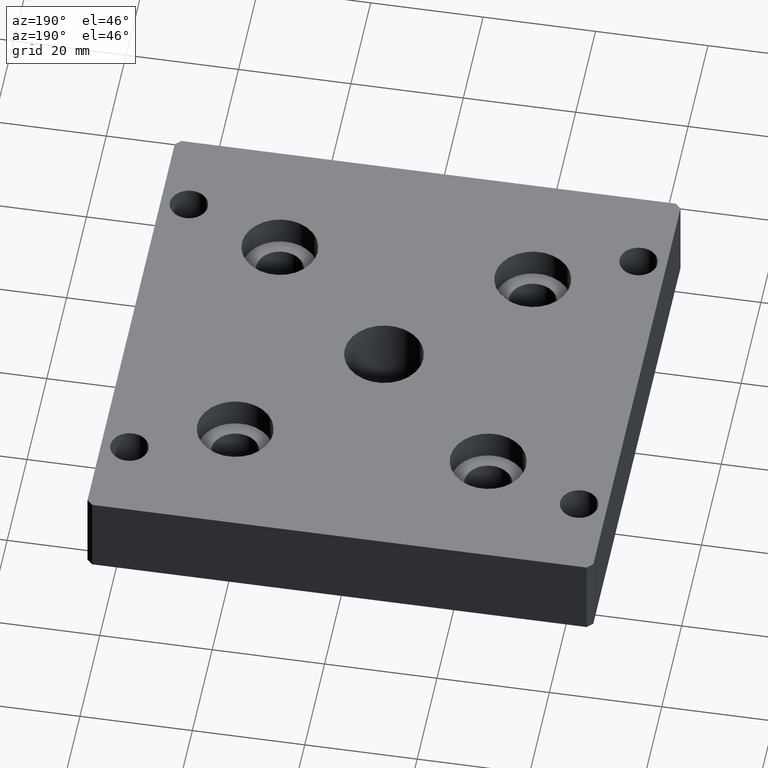
[diagram: clean part render]
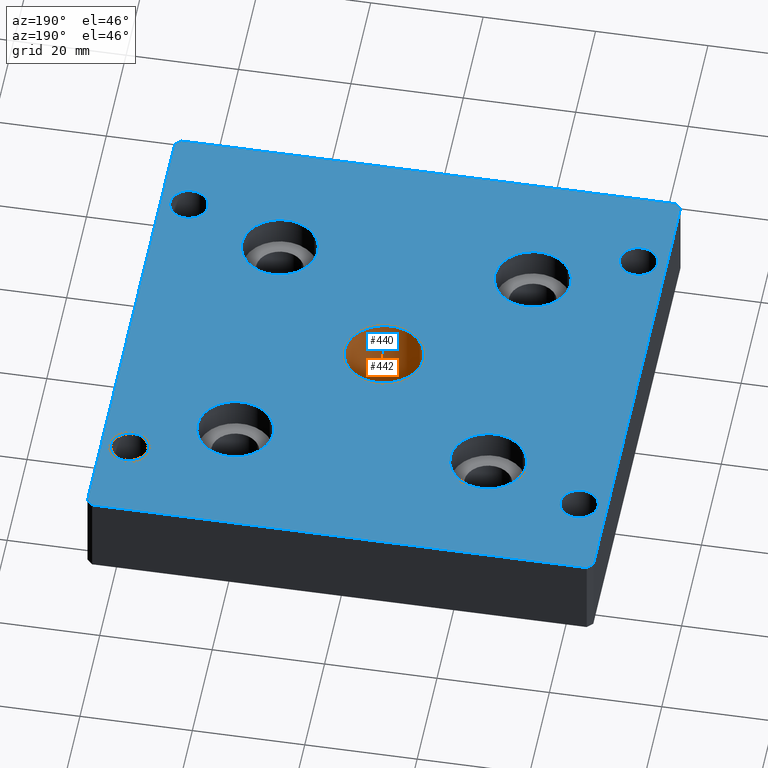
[diagram: same view with the hole feature highlighted: cylindrical wall and planar end face, labeled with their STEP entity ids]
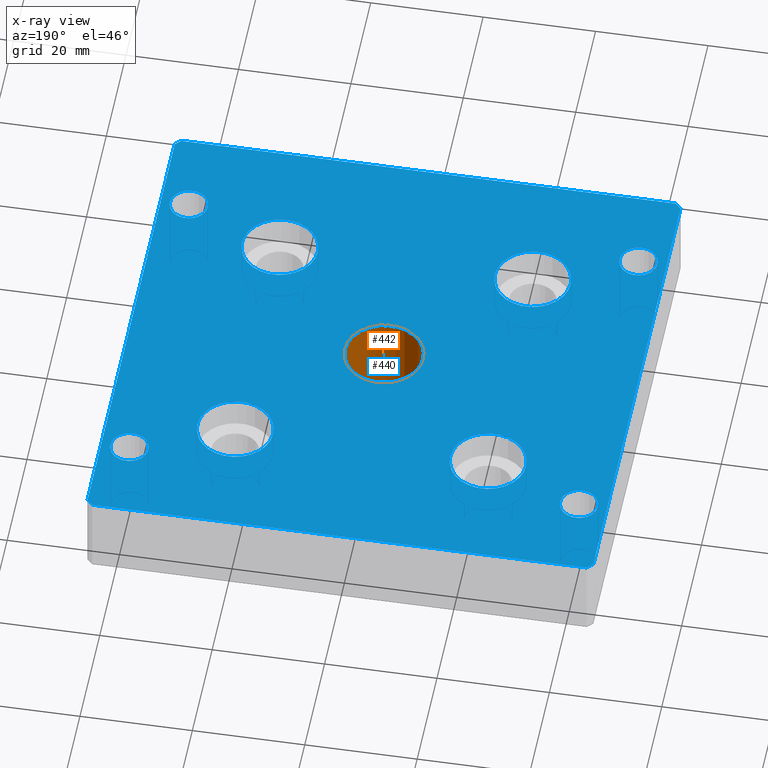
[diagram: x-ray of the same camera — body ghosted, the hole faces saturated]
A machine part, auxiliary view. The highlighted faces form one hole feature of diameter 14 mm: the cylindrical wall (entity #442, orange) and its adjacent planar end face (entity #440, blue) — they share a circular edge in the B-rep.
The next image is the same camera in x-ray (body ghosted, the hole faces saturated) — the bore reads through the body.
Wall:
#15=CYLINDRICAL_SURFACE('',#489,7.);
#46=FACE_BOUND('',#145,.T.);
#63=CIRCLE('',#470,7.);
#72=CIRCLE('',#480,7.);
#99=FACE_OUTER_BOUND('',#144,.T.);
#144=EDGE_LOOP('',(#384));
#145=EDGE_LOOP('',(#385));
#242=VERTEX_POINT('',#696);
#251=VERTEX_POINT('',#715);
#292=EDGE_CURVE('',#242,#242,#63,.T.);
#301=EDGE_CURVE('',#251,#251,#72,.T.);
#384=ORIENTED_EDGE('',*,*,#301,.T.);
#385=ORIENTED_EDGE('',*,*,#292,.T.);
#442=ADVANCED_FACE('',(#99,#46),#15,.F.);
#470=AXIS2_PLACEMENT_3D('',#697,#558,#559);
#480=AXIS2_PLACEMENT_3D('',#716,#578,#579);
#489=AXIS2_PLACEMENT_3D('',#733,#596,#597);
#558=DIRECTION('center_axis',(0.,0.,1.));
#559=DIRECTION('ref_axis',(1.,0.,0.));
#578=DIRECTION('center_axis',(0.,0.,-1.));
#579=DIRECTION('ref_axis',(1.,0.,0.));
#596=DIRECTION('center_axis',(0.,0.,1.));
#597=DIRECTION('ref_axis',(1.,0.,0.));
#696=CARTESIAN_POINT('',(-7.,0.,0.));
#697=CARTESIAN_POINT('Origin',(0.,0.,0.));
#715=CARTESIAN_POINT('',(-7.,0.,-15.));
#716=CARTESIAN_POINT('Origin',(0.,0.,-15.));
#733=CARTESIAN_POINT('Origin',(0.,0.,0.));
End face:
#28=FACE_BOUND('',#125,.T.);
#29=FACE_BOUND('',#126,.T.);
#30=FACE_BOUND('',#127,.T.);
#31=FACE_BOUND('',#128,.T.);
#32=FACE_BOUND('',#129,.T.);
#33=FACE_BOUND('',#130,.T.);
#34=FACE_BOUND('',#131,.T.);
#35=FACE_BOUND('',#132,.T.);
#36=FACE_BOUND('',#133,.T.);
#63=CIRCLE('',#470,7.);
#64=CIRCLE('',#471,3.375);
#65=CIRCLE('',#472,3.375);
#66=CIRCLE('',#473,3.375);
#67=CIRCLE('',#474,3.375);
#68=CIRCLE('',#475,6.75);
#69=CIRCLE('',#476,6.75);
#70=CIRCLE('',#477,6.75);
#71=CIRCLE('',#478,6.75);
#97=FACE_OUTER_BOUND('',#124,.T.);
#124=EDGE_LOOP('',(#350,#351,#352,#353,#354,#355,#356,#357));
#125=EDGE_LOOP('',(#358));
#126=EDGE_LOOP('',(#359));
#127=EDGE_LOOP('',(#360));
#128=EDGE_LOOP('',(#361));
#129=EDGE_LOOP('',(#362));
#130=EDGE_LOOP('',(#363));
#131=EDGE_LOOP('',(#364));
#132=EDGE_LOOP('',(#365));
#133=EDGE_LOOP('',(#366));
#181=LINE('',#655,#205);
#184=LINE('',#661,#208);
#187=LINE('',#667,#211);
#190=LINE('',#673,#214);
#193=LINE('',#679,#217);
#196=LINE('',#685,#220);
#199=LINE('',#691,#223);
#201=LINE('',#694,#225);
#205=VECTOR('',#521,1.41421356236698);
#208=VECTOR('',#526,87.999999999648);
#211=VECTOR('',#531,1.41421356236763);
#214=VECTOR('',#536,87.999999999648);
#217=VECTOR('',#541,1.41421356236763);
#220=VECTOR('',#546,87.999999999648);
#223=VECTOR('',#551,1.41421356236698);
#225=VECTOR('',#555,87.999999999648);
#226=VERTEX_POINT('',#648);
#229=VERTEX_POINT('',#653);
#231=VERTEX_POINT('',#659);
#233=VERTEX_POINT('',#665);
#235=VERTEX_POINT('',#671);
#237=VERTEX_POINT('',#677);
#239=VERTEX_POINT('',#683);
#241=VERTEX_POINT('',#689);
#242=VERTEX_POINT('',#696);
#243=VERTEX_POINT('',#698);
#244=VERTEX_POINT('',#700);
#245=VERTEX_POINT('',#702);
#246=VERTEX_POINT('',#704);
#247=VERTEX_POINT('',#706);
#248=VERTEX_POINT('',#708);
#249=VERTEX_POINT('',#710);
#250=VERTEX_POINT('',#712);
#271=EDGE_CURVE('',#226,#229,#181,.T.);
#274=EDGE_CURVE('',#229,#231,#184,.T.);
#277=EDGE_CURVE('',#231,#233,#187,.T.);
#280=EDGE_CURVE('',#233,#235,#190,.T.);
#283=EDGE_CURVE('',#235,#237,#193,.T.);
#286=EDGE_CURVE('',#237,#239,#196,.T.);
#289=EDGE_CURVE('',#239,#241,#199,.T.);
#291=EDGE_CURVE('',#241,#226,#201,.T.);
#292=EDGE_CURVE('',#242,#242,#63,.T.);
#293=EDGE_CURVE('',#243,#243,#64,.T.);
#294=EDGE_CURVE('',#244,#244,#65,.T.);
#295=EDGE_CURVE('',#245,#245,#66,.T.);
#296=EDGE_CURVE('',#246,#246,#67,.T.);
#297=EDGE_CURVE('',#247,#247,#68,.T.);
#298=EDGE_CURVE('',#248,#248,#69,.T.);
#299=EDGE_CURVE('',#249,#249,#70,.T.);
#300=EDGE_CURVE('',#250,#250,#71,.T.);
#350=ORIENTED_EDGE('',*,*,#271,.T.);
#351=ORIENTED_EDGE('',*,*,#274,.T.);
#352=ORIENTED_EDGE('',*,*,#277,.T.);
#353=ORIENTED_EDGE('',*,*,#280,.T.);
#354=ORIENTED_EDGE('',*,*,#283,.T.);
#355=ORIENTED_EDGE('',*,*,#286,.T.);
#356=ORIENTED_EDGE('',*,*,#289,.T.);
#357=ORIENTED_EDGE('',*,*,#291,.T.);
#358=ORIENTED_EDGE('',*,*,#292,.F.);
#359=ORIENTED_EDGE('',*,*,#293,.F.);
#360=ORIENTED_EDGE('',*,*,#294,.F.);
#361=ORIENTED_EDGE('',*,*,#295,.F.);
#362=ORIENTED_EDGE('',*,*,#296,.F.);
#363=ORIENTED_EDGE('',*,*,#297,.F.);
#364=ORIENTED_EDGE('',*,*,#298,.F.);
#365=ORIENTED_EDGE('',*,*,#299,.F.);
#366=ORIENTED_EDGE('',*,*,#300,.F.);
#426=PLANE('',#469);
#440=ADVANCED_FACE('',(#97,#28,#29,#30,#31,#32,#33,#34,#35,#36),#426,.T.);
#469=AXIS2_PLACEMENT_3D('',#695,#556,#557);
#470=AXIS2_PLACEMENT_3D('',#697,#558,#559);
#471=AXIS2_PLACEMENT_3D('',#699,#560,#561);
#472=AXIS2_PLACEMENT_3D('',#701,#562,#563);
#473=AXIS2_PLACEMENT_3D('',#703,#564,#565);
#474=AXIS2_PLACEMENT_3D('',#705,#566,#567);
#475=AXIS2_PLACEMENT_3D('',#707,#568,#569);
#476=AXIS2_PLACEMENT_3D('',#709,#570,#571);
#477=AXIS2_PLACEMENT_3D('',#711,#572,#573);
#478=AXIS2_PLACEMENT_3D('',#713,#574,#575);
#521=DIRECTION('',(0.707106781186387,-0.707106781186708,0.));
#526=DIRECTION('',(1.,0.,0.));
#531=DIRECTION('',(0.707106781186708,0.707106781186387,0.));
#536=DIRECTION('',(0.,1.,0.));
#541=DIRECTION('',(-0.707106781186708,0.707106781186387,0.));
#546=DIRECTION('',(-1.,0.,0.));
#551=DIRECTION('',(-0.707106781186387,-0.707106781186708,0.));
#555=DIRECTION('',(0.,-1.,0.));
#556=DIRECTION('center_axis',(0.,0.,1.));
#557=DIRECTION('ref_axis',(1.,0.,0.));
#558=DIRECTION('center_axis',(0.,0.,1.));
#559=DIRECTION('ref_axis',(1.,0.,0.));
#560=DIRECTION('center_axis',(0.,0.,1.));
#561=DIRECTION('ref_axis',(1.,0.,0.));
#562=DIRECTION('center_axis',(0.,0.,1.));
#563=DIRECTION('ref_axis',(1.,0.,0.));
#564=DIRECTION('center_axis',(0.,0.,1.));
#565=DIRECTION('ref_axis',(1.,0.,0.));
#566=DIRECTION('center_axis',(0.,0.,1.));
#567=DIRECTION('ref_axis',(1.,0.,0.));
#568=DIRECTION('center_axis',(0.,0.,1.));
#569=DIRECTION('ref_axis',(1.,0.,0.));
#570=DIRECTION('center_axis',(0.,0.,1.));
#571=DIRECTION('ref_axis',(1.,0.,0.));
#572=DIRECTION('center_axis',(0.,0.,1.));
#573=DIRECTION('ref_axis',(1.,0.,0.));
#574=DIRECTION('center_axis',(0.,0.,1.));
#575=DIRECTION('ref_axis',(1.,0.,0.));
#648=CARTESIAN_POINT('',(-44.9999999998199,-43.999999999824,0.));
#653=CARTESIAN_POINT('',(-43.9999999998245,-44.9999999998199,0.));
#655=CARTESIAN_POINT('',(-44.9999999998199,-43.999999999824,0.));
#659=CARTESIAN_POINT('',(43.9999999998236,-44.9999999998199,0.));
#661=CARTESIAN_POINT('',(-43.9999999998245,-44.9999999998199,0.));
#665=CARTESIAN_POINT('',(44.9999999998199,-43.999999999824,0.));
#667=CARTESIAN_POINT('',(43.9999999998236,-44.9999999998199,0.));
#671=CARTESIAN_POINT('',(44.9999999998199,43.999999999824,0.));
#673=CARTESIAN_POINT('',(44.9999999998199,-43.999999999824,0.));
#677=CARTESIAN_POINT('',(43.9999999998236,44.9999999998199,0.));
#679=CARTESIAN_POINT('',(44.9999999998199,43.999999999824,0.));
#683=CARTESIAN_POINT('',(-43.9999999998245,44.9999999998199,0.));
#685=CARTESIAN_POINT('',(43.9999999998236,44.9999999998199,0.));
#689=CARTESIAN_POINT('',(-44.9999999998199,43.999999999824,0.));
#691=CARTESIAN_POINT('',(-43.9999999998245,44.9999999998199,0.));
#694=CARTESIAN_POINT('',(-44.9999999998199,43.999999999824,0.));
#695=CARTESIAN_POINT('Origin',(-54.0000047374324,-54.0000047376525,0.));
#696=CARTESIAN_POINT('',(-7.,0.,0.));
#697=CARTESIAN_POINT('Origin',(0.,0.,0.));
#698=CARTESIAN_POINT('',(-43.3749999998599,29.9999999999,0.));
#699=CARTESIAN_POINT('Origin',(-39.9999999998599,29.9999999999,0.));
#700=CARTESIAN_POINT('',(36.6249999998599,29.9999999999,0.));
#701=CARTESIAN_POINT('Origin',(39.9999999998599,29.9999999999,0.));
#702=CARTESIAN_POINT('',(36.6249999998599,-29.9999999999,0.));
#703=CARTESIAN_POINT('Origin',(39.9999999998599,-29.9999999999,0.));
#704=CARTESIAN_POINT('',(-43.3749999998599,-29.9999999999,0.));
#705=CARTESIAN_POINT('Origin',(-39.9999999998599,-29.9999999999,0.));
#706=CARTESIAN_POINT('',(-29.24999999991,22.49999999991,0.));
#707=CARTESIAN_POINT('Origin',(-22.49999999991,22.49999999991,0.));
#708=CARTESIAN_POINT('',(15.74999999991,22.49999999991,0.));
#709=CARTESIAN_POINT('Origin',(22.49999999991,22.49999999991,0.));
#710=CARTESIAN_POINT('',(15.74999999991,-22.49999999991,0.));
#711=CARTESIAN_POINT('Origin',(22.49999999991,-22.49999999991,0.));
#712=CARTESIAN_POINT('',(-29.24999999991,-22.49999999991,0.));
#713=CARTESIAN_POINT('Origin',(-22.49999999991,-22.49999999991,0.));